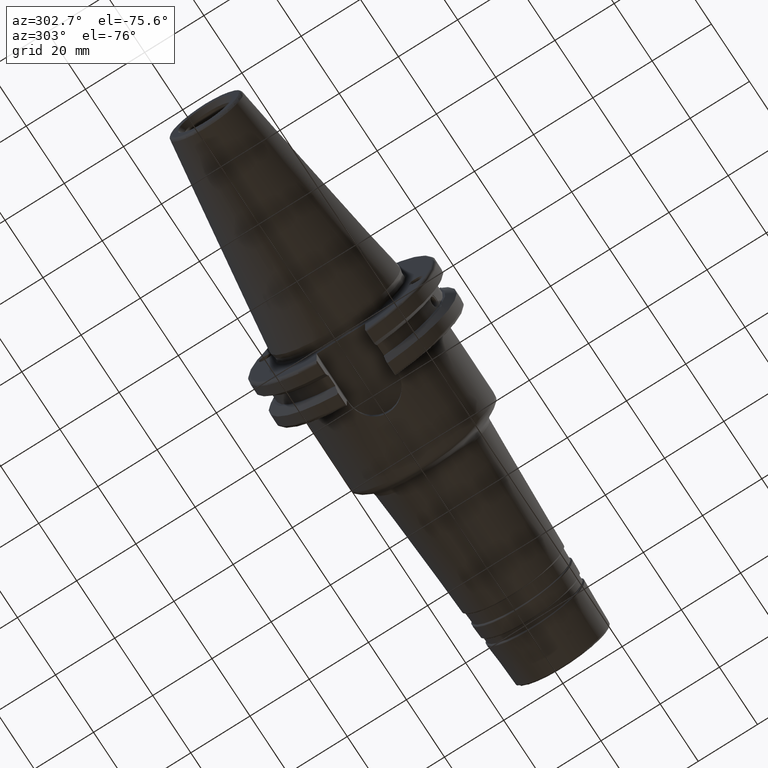
[diagram: clean part render]
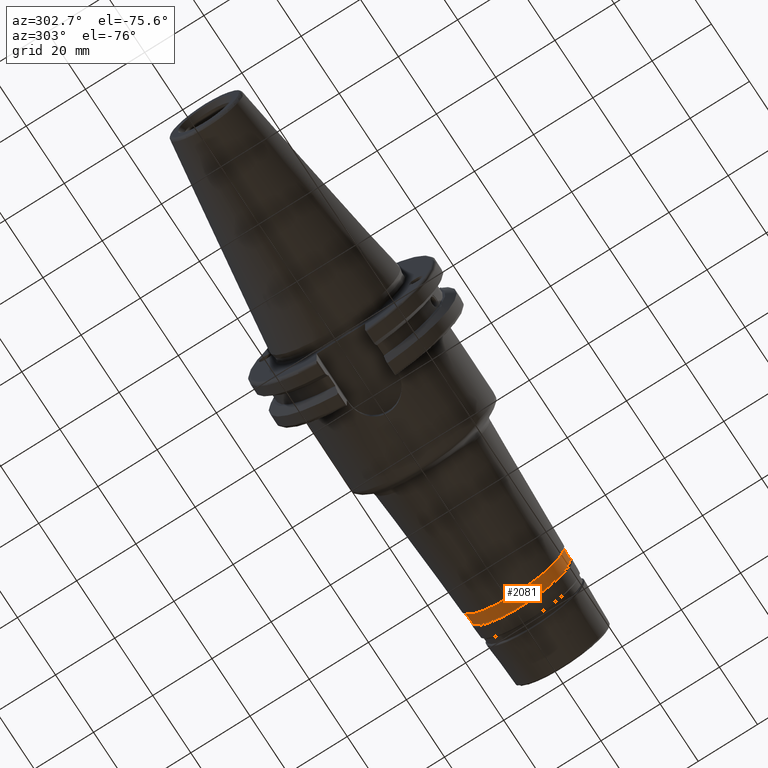
[diagram: same view with one face highlighted and labeled with its STEP entity id]
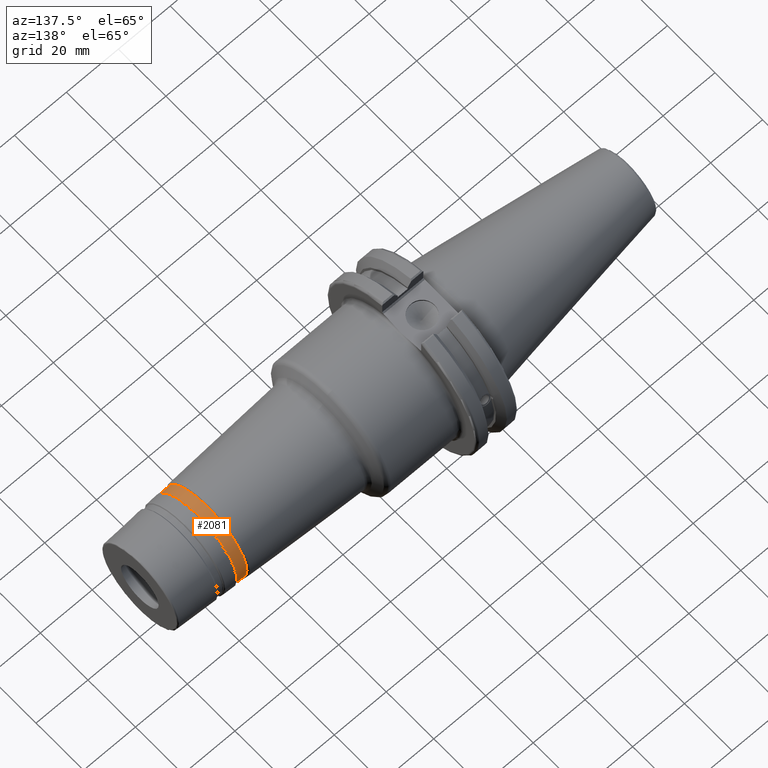
[diagram: same view with one face highlighted and labeled with its STEP entity id]
A machine part, auxiliary view. The second image highlights one B-rep face of the part: STEP entity #2081.
A second angle (auxiliary view) of the same face is appended — the face is thin or edge-on in the first view.
In plain terms, the highlighted conical surface has half-angle 3 deg.
Its self-contained STEP definition (entity closure, byte-faithful):
#200=FACE_OUTER_BOUND('',#309,.T.);
#309=EDGE_LOOP('',(#1493,#1494,#1495,#1496,#1497,#1498,#1499,#1500));
#421=LINE('',#3434,#520);
#520=VECTOR('',#2668,16.7564541224331);
#665=CIRCLE('',#2265,16.6578254456323);
#670=CIRCLE('',#2270,16.6578254456323);
#671=CIRCLE('',#2271,16.6578254456323);
#672=CIRCLE('',#2273,16.855082799234);
#673=CIRCLE('',#2274,16.855082799234);
#674=CIRCLE('',#2275,16.855082799234);
#839=VERTEX_POINT('',#3419);
#840=VERTEX_POINT('',#3420);
#844=VERTEX_POINT('',#3429);
#845=VERTEX_POINT('',#3433);
#846=VERTEX_POINT('',#3435);
#847=VERTEX_POINT('',#3437);
#1096=EDGE_CURVE('',#839,#840,#665,.T.);
#1101=EDGE_CURVE('',#840,#844,#670,.T.);
#1102=EDGE_CURVE('',#844,#839,#671,.T.);
#1103=EDGE_CURVE('',#844,#845,#421,.T.);
#1104=EDGE_CURVE('',#846,#845,#672,.T.);
#1105=EDGE_CURVE('',#847,#846,#673,.T.);
#1106=EDGE_CURVE('',#845,#847,#674,.T.);
#1493=ORIENTED_EDGE('',*,*,#1096,.F.);
#1494=ORIENTED_EDGE('',*,*,#1102,.F.);
#1495=ORIENTED_EDGE('',*,*,#1103,.T.);
#1496=ORIENTED_EDGE('',*,*,#1104,.F.);
#1497=ORIENTED_EDGE('',*,*,#1105,.F.);
#1498=ORIENTED_EDGE('',*,*,#1106,.F.);
#1499=ORIENTED_EDGE('',*,*,#1103,.F.);
#1500=ORIENTED_EDGE('',*,*,#1101,.F.);
#2048=CONICAL_SURFACE('',#2272,16.7564541224331,0.0523598775598302);
#2081=ADVANCED_FACE('',(#200),#2048,.T.);
#2265=AXIS2_PLACEMENT_3D('',#3421,#2652,#2653);
#2270=AXIS2_PLACEMENT_3D('',#3430,#2662,#2663);
#2271=AXIS2_PLACEMENT_3D('',#3431,#2664,#2665);
#2272=AXIS2_PLACEMENT_3D('',#3432,#2666,#2667);
#2273=AXIS2_PLACEMENT_3D('',#3436,#2669,#2670);
#2274=AXIS2_PLACEMENT_3D('',#3438,#2671,#2672);
#2275=AXIS2_PLACEMENT_3D('',#3439,#2673,#2674);
#2652=DIRECTION('center_axis',(1.,0.,0.));
#2653=DIRECTION('ref_axis',(0.,-1.,3.06161699786838E-17));
#2662=DIRECTION('center_axis',(1.,0.,0.));
#2663=DIRECTION('ref_axis',(0.,-1.,3.06161699786838E-17));
#2664=DIRECTION('center_axis',(1.,0.,0.));
#2665=DIRECTION('ref_axis',(0.,-1.,3.06161699786838E-17));
#2666=DIRECTION('center_axis',(-1.,0.,0.));
#2667=DIRECTION('ref_axis',(0.,1.,0.));
#2668=DIRECTION('',(-0.998629534754574,-0.0523359562429442,-6.40930612932375E-18));
#2669=DIRECTION('center_axis',(-1.,0.,0.));
#2670=DIRECTION('ref_axis',(0.,-1.,3.06161699786838E-17));
#2671=DIRECTION('center_axis',(-1.,0.,0.));
#2672=DIRECTION('ref_axis',(0.,-1.,3.06161699786838E-17));
#2673=DIRECTION('center_axis',(-1.,0.,0.));
#2674=DIRECTION('ref_axis',(0.,-1.,3.06161699786838E-17));
#3419=CARTESIAN_POINT('',(97.8942814505757,16.6578254456323,-1.01999763063745E-15));
#3420=CARTESIAN_POINT('',(97.8942814505757,-2.03999526127489E-15,16.6578254456323));
#3421=CARTESIAN_POINT('Origin',(97.8942814505757,0.,-2.54999407659361E-15));
#3429=CARTESIAN_POINT('',(97.8942814505757,-16.6578254456323,-2.03999526127489E-15));
#3430=CARTESIAN_POINT('Origin',(97.8942814505757,0.,-2.54999407659361E-15));
#3431=CARTESIAN_POINT('Origin',(97.8942814505757,0.,-2.54999407659361E-15));
#3432=CARTESIAN_POINT('Origin',(96.0123341872088,0.,0.));
#3433=CARTESIAN_POINT('',(94.1303869238419,-16.855082799234,-2.06415231994455E-15));
#3434=CARTESIAN_POINT('',(96.0123341872088,-16.7564541224331,-2.05207379060972E-15));
#3435=CARTESIAN_POINT('',(94.1303869238419,16.855082799234,-5.16038079986138E-15));
#3436=CARTESIAN_POINT('Origin',(94.1303869238419,0.,-2.58019039993069E-15));
#3437=CARTESIAN_POINT('',(94.1303869238419,-2.06415231994455E-15,16.855082799234));
#3438=CARTESIAN_POINT('Origin',(94.1303869238419,0.,-2.58019039993069E-15));
#3439=CARTESIAN_POINT('Origin',(94.1303869238419,0.,-2.58019039993069E-15));